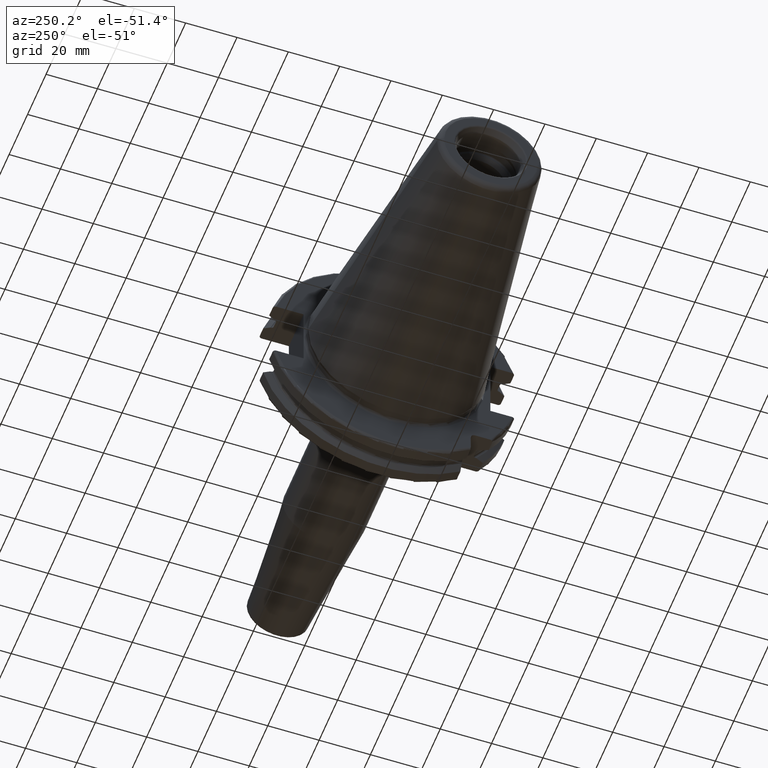
[diagram: clean part render]
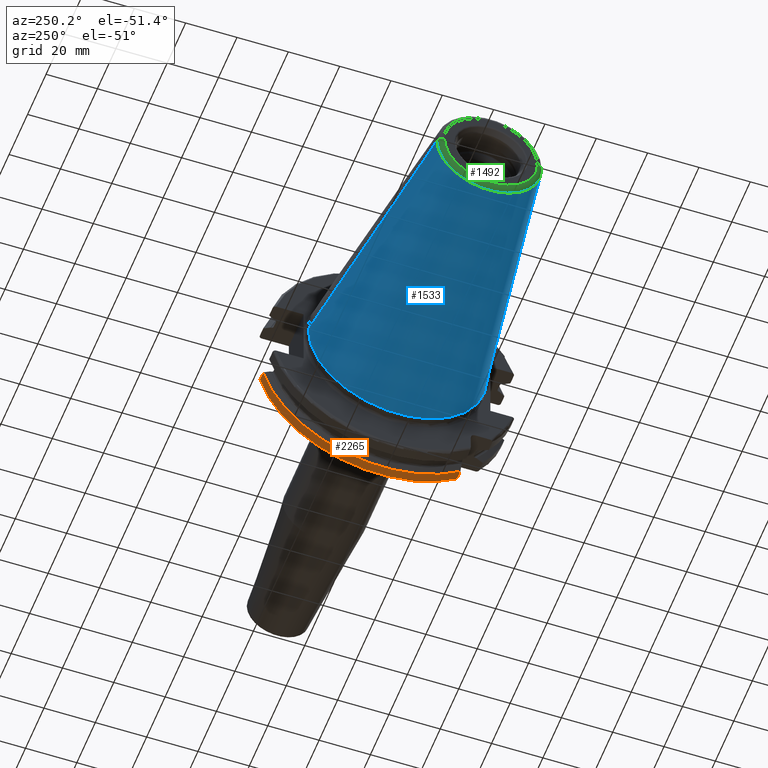
[diagram: same view with three faces highlighted in distinct colors, each labeled with its STEP entity id]
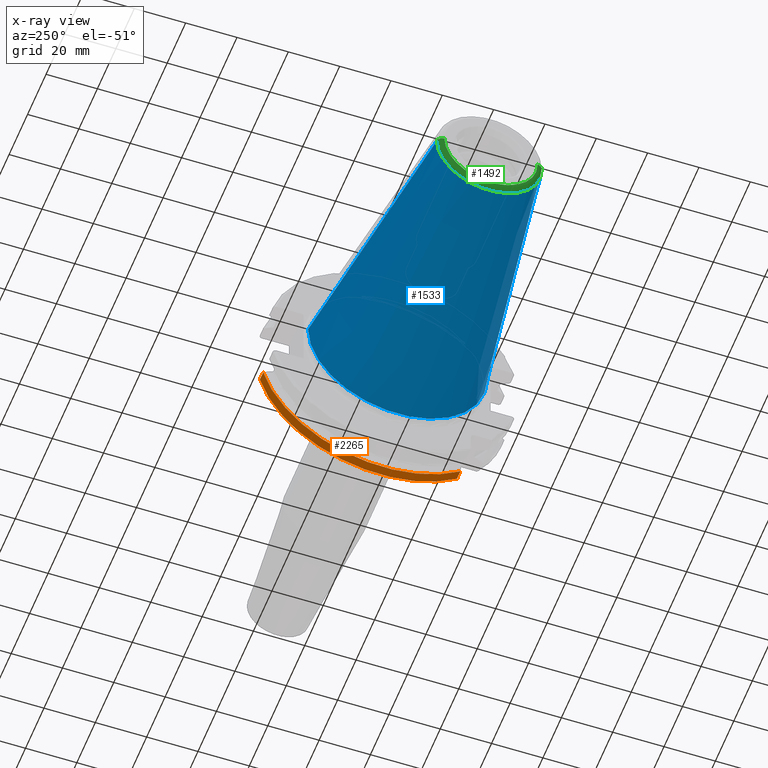
[diagram: x-ray of the same camera — body ghosted, the three highlighted faces saturated]
A machine part, auxiliary view with three faces highlighted in distinct colors.
The next image is the same camera in x-ray (body ghosted, the three faces saturated) — at least one of them is partly hidden behind the body in this view.
Their STEP definitions:

[orange] entity #2265 — the highlighted cylindrical surface (partial cylindrical patch) has radius 48.7375 mm, axis along (1, 0, 0).
#736=DIRECTION('',(1.E0,0.E0,0.E0));
#737=VECTOR('',#736,3.634621614173E0);
#738=CARTESIAN_POINT('',(1.441537838583E1,4.699929686974E1,-1.29E1));
#739=LINE('',#738,#737);
#740=CARTESIAN_POINT('',(1.441537838583E1,0.E0,0.E0));
#741=DIRECTION('',(1.E0,0.E0,0.E0));
#742=DIRECTION('',(0.E0,-6.124647345473E-1,-7.904979120376E-1));
#743=AXIS2_PLACEMENT_3D('',#740,#741,#742);
#745=DIRECTION('',(1.E0,0.E0,0.E0));
#746=VECTOR('',#745,3.634621614173E0);
#747=CARTESIAN_POINT('',(1.441537838583E1,-2.985E1,-3.852689198793E1));
#748=LINE('',#747,#746);
#749=CARTESIAN_POINT('',(1.805E1,0.E0,0.E0));
#750=DIRECTION('',(-1.E0,0.E0,0.E0));
#751=DIRECTION('',(0.E0,9.643354064066E-1,-2.646832521159E-1));
#752=AXIS2_PLACEMENT_3D('',#749,#750,#751);
#790=CARTESIAN_POINT('',(1.441537838583E1,4.699929686974E1,-1.29E1));
#802=CARTESIAN_POINT('',(1.441537838583E1,-2.985E1,-3.852689198793E1));
#1324=VERTEX_POINT('',#790);
#1374=CARTESIAN_POINT('',(1.805E1,4.699929686974E1,-1.29E1));
#1375=VERTEX_POINT('',#1374);
#1399=CARTESIAN_POINT('',(1.805E1,-2.985E1,-3.852689198793E1));
#1400=VERTEX_POINT('',#1399);
#1424=VERTEX_POINT('',#802);
#2252=CARTESIAN_POINT('',(-1.076325E2,0.E0,0.E0));
#2253=DIRECTION('',(1.E0,0.E0,0.E0));
#2254=DIRECTION('',(0.E0,-1.E0,0.E0));
#2255=AXIS2_PLACEMENT_3D('',#2252,#2253,#2254);
#2256=CYLINDRICAL_SURFACE('',#2255,4.87375E1);
#2257=ORIENTED_EDGE('',*,*,#1825,.F.);
#2259=ORIENTED_EDGE('',*,*,#2258,.F.);
#2260=ORIENTED_EDGE('',*,*,#1675,.T.);
#2262=ORIENTED_EDGE('',*,*,#2261,.F.);
#2263=EDGE_LOOP('',(#2257,#2259,#2260,#2262));
#2264=FACE_OUTER_BOUND('',#2263,.F.);
#2265=ADVANCED_FACE('',(#2264),#2256,.T.);
#744=CIRCLE('',#743,4.87375E1);
#753=CIRCLE('',#752,4.87375E1);
#1675=EDGE_CURVE('',#1424,#1400,#748,.T.);
#1825=EDGE_CURVE('',#1324,#1375,#739,.T.);
#2258=EDGE_CURVE('',#1424,#1324,#744,.T.);
#2261=EDGE_CURVE('',#1375,#1400,#753,.T.);

[blue] entity #1533 — the highlighted conical surface has half-angle 8.298 deg.
#32=CARTESIAN_POINT('',(-9.967471700563E1,0.E0,0.E0));
#33=DIRECTION('',(-1.E0,0.E0,0.E0));
#34=DIRECTION('',(0.E0,1.E0,0.E0));
#35=AXIS2_PLACEMENT_3D('',#32,#33,#34);
#47=DIRECTION('',(-9.895312636440E-1,-1.443186691705E-1,0.E0));
#48=VECTOR('',#47,1.002343617797E2);
#49=CARTESIAN_POINT('',(-4.896823332305E-1,3.485358204157E1,0.E0));
#50=LINE('',#49,#48);
#51=DIRECTION('',(-9.895312636440E-1,1.443186691705E-1,0.E0));
#52=VECTOR('',#51,1.002343617797E2);
#53=CARTESIAN_POINT('',(-4.896823332305E-1,-3.485358204157E1,0.E0));
#54=LINE('',#53,#52);
#55=CARTESIAN_POINT('',(-4.896823332305E-1,0.E0,0.E0));
#56=DIRECTION('',(-1.E0,0.E0,0.E0));
#57=DIRECTION('',(0.E0,1.E0,0.E0));
#58=AXIS2_PLACEMENT_3D('',#55,#56,#57);
#1206=CARTESIAN_POINT('',(-9.967471700563E1,2.038789234437E1,0.E0));
#1208=VERTEX_POINT('',#1206);
#1210=CARTESIAN_POINT('',(-9.967471700563E1,-2.038789234437E1,0.E0));
#1212=VERTEX_POINT('',#1210);
#1274=CARTESIAN_POINT('',(-4.896823332305E-1,3.485358204157E1,0.E0));
#1275=VERTEX_POINT('',#1274);
#1276=CARTESIAN_POINT('',(-4.896823332305E-1,-3.485358204157E1,0.E0));
#1277=VERTEX_POINT('',#1276);
#1521=CARTESIAN_POINT('',(-5.008219966943E1,0.E0,0.E0));
#1522=DIRECTION('',(1.E0,0.E0,0.E0));
#1523=DIRECTION('',(0.E0,-1.E0,0.E0));
#1524=AXIS2_PLACEMENT_3D('',#1521,#1522,#1523);
#1525=CONICAL_SURFACE('',#1524,2.762073719297E1,8.297826828206E0);
#1526=ORIENTED_EDGE('',*,*,#1511,.T.);
#1527=ORIENTED_EDGE('',*,*,#1488,.T.);
#1528=ORIENTED_EDGE('',*,*,#1515,.F.);
#1530=ORIENTED_EDGE('',*,*,#1529,.F.);
#1531=EDGE_LOOP('',(#1526,#1527,#1528,#1530));
#1532=FACE_OUTER_BOUND('',#1531,.F.);
#1533=ADVANCED_FACE('',(#1532),#1525,.T.);
#36=CIRCLE('',#35,2.038789234437E1);
#59=CIRCLE('',#58,3.485358204157E1);
#1488=EDGE_CURVE('',#1208,#1212,#36,.T.);
#1511=EDGE_CURVE('',#1275,#1208,#50,.T.);
#1515=EDGE_CURVE('',#1277,#1212,#54,.T.);
#1529=EDGE_CURVE('',#1275,#1277,#59,.T.);

[green] entity #1492 — the highlighted toroidal blend (fillet) surface has major radius 18.1614 mm and minor (blend) radius 2.25 mm.
#2=CARTESIAN_POINT('',(-1.016E2,0.E0,0.E0));
#3=DIRECTION('',(-1.E0,0.E0,0.E0));
#4=DIRECTION('',(0.E0,1.E0,0.E0));
#5=AXIS2_PLACEMENT_3D('',#2,#3,#4);
#22=CARTESIAN_POINT('',(-9.935E1,1.816144700117E1,0.E0));
#23=DIRECTION('',(0.E0,0.E0,1.E0));
#24=DIRECTION('',(-1.443186691705E-1,9.895312636440E-1,0.E0));
#25=AXIS2_PLACEMENT_3D('',#22,#23,#24);
#27=CARTESIAN_POINT('',(-9.935E1,-1.816144700117E1,0.E0));
#28=DIRECTION('',(0.E0,0.E0,-1.E0));
#29=DIRECTION('',(-1.443186691705E-1,-9.895312636440E-1,0.E0));
#30=AXIS2_PLACEMENT_3D('',#27,#28,#29);
#32=CARTESIAN_POINT('',(-9.967471700563E1,0.E0,0.E0));
#33=DIRECTION('',(-1.E0,0.E0,0.E0));
#34=DIRECTION('',(0.E0,1.E0,0.E0));
#35=AXIS2_PLACEMENT_3D('',#32,#33,#34);
#1206=CARTESIAN_POINT('',(-9.967471700563E1,2.038789234437E1,0.E0));
#1207=CARTESIAN_POINT('',(-1.016E2,1.816144700117E1,0.E0));
#1208=VERTEX_POINT('',#1206);
#1209=VERTEX_POINT('',#1207);
#1210=CARTESIAN_POINT('',(-9.967471700563E1,-2.038789234437E1,0.E0));
#1211=CARTESIAN_POINT('',(-1.016E2,-1.816144700117E1,0.E0));
#1212=VERTEX_POINT('',#1210);
#1213=VERTEX_POINT('',#1211);
#1478=CARTESIAN_POINT('',(-9.935E1,0.E0,0.E0));
#1479=DIRECTION('',(1.E0,0.E0,0.E0));
#1480=DIRECTION('',(0.E0,-1.E0,0.E0));
#1481=AXIS2_PLACEMENT_3D('',#1478,#1479,#1480);
#1482=TOROIDAL_SURFACE('',#1481,1.816144700117E1,2.25E0);
#1484=ORIENTED_EDGE('',*,*,#1483,.T.);
#1485=ORIENTED_EDGE('',*,*,#1465,.T.);
#1487=ORIENTED_EDGE('',*,*,#1486,.F.);
#1489=ORIENTED_EDGE('',*,*,#1488,.F.);
#1490=EDGE_LOOP('',(#1484,#1485,#1487,#1489));
#1491=FACE_OUTER_BOUND('',#1490,.F.);
#1492=ADVANCED_FACE('',(#1491),#1482,.T.);
#6=CIRCLE('',#5,1.816144700117E1);
#26=CIRCLE('',#25,2.25E0);
#31=CIRCLE('',#30,2.25E0);
#36=CIRCLE('',#35,2.038789234437E1);
#1465=EDGE_CURVE('',#1209,#1213,#6,.T.);
#1483=EDGE_CURVE('',#1208,#1209,#26,.T.);
#1486=EDGE_CURVE('',#1212,#1213,#31,.T.);
#1488=EDGE_CURVE('',#1208,#1212,#36,.T.);